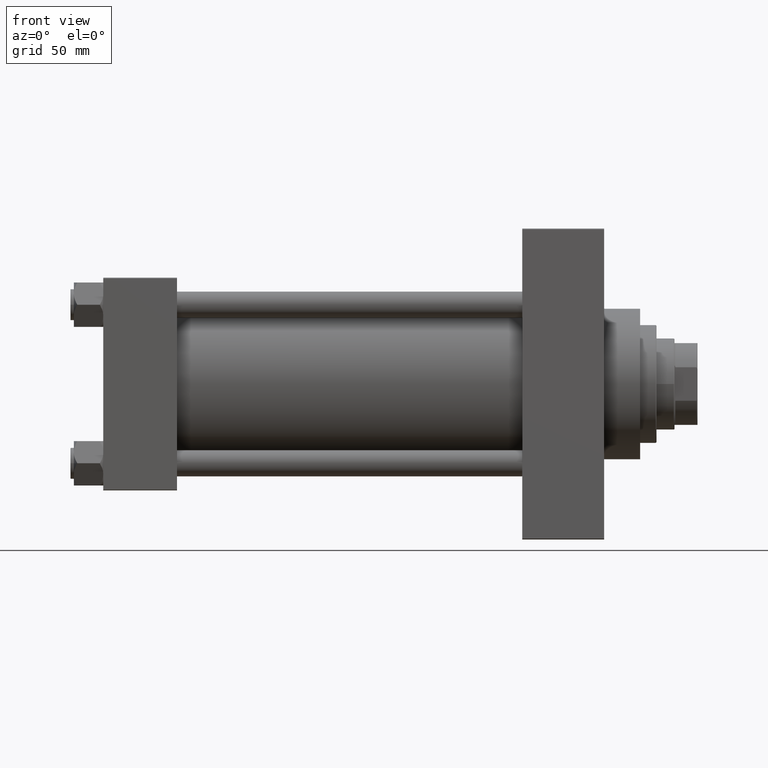
[diagram: clean part render]
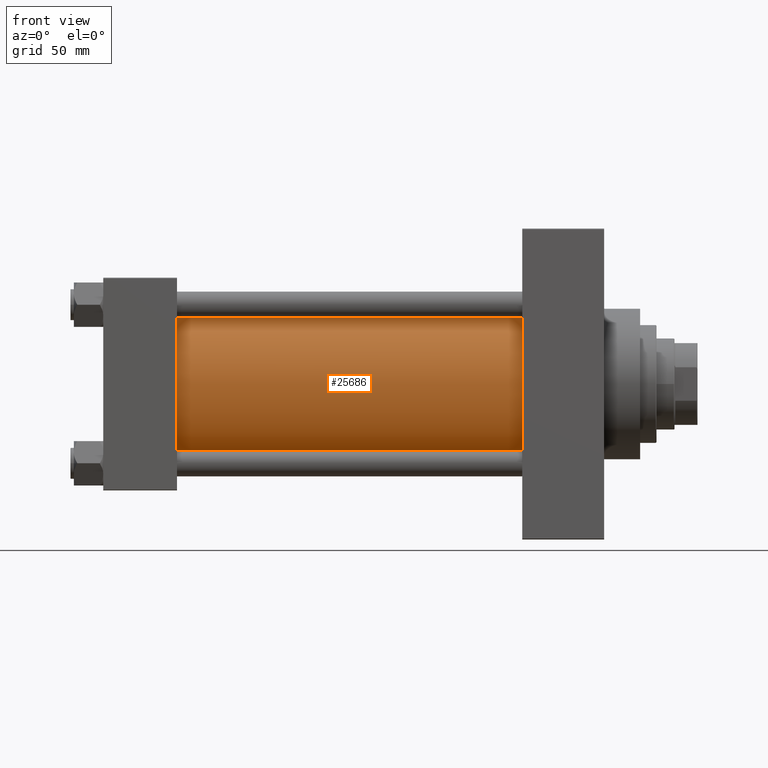
[diagram: same view with one face highlighted and labeled with its STEP entity id]
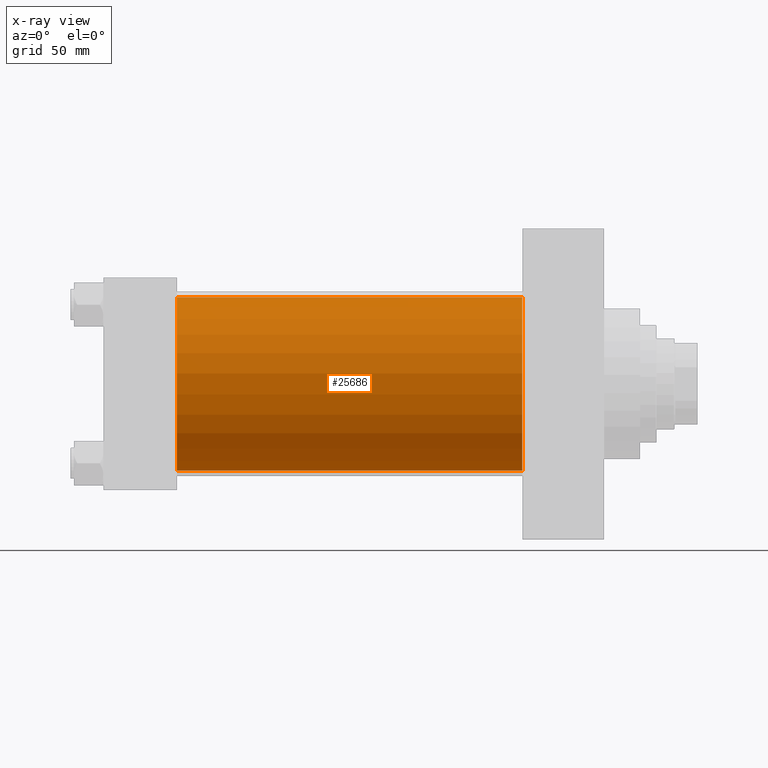
[diagram: x-ray of the same camera — body ghosted, the highlighted face saturated]
A machine part, front view. The second image highlights one B-rep face of the part: STEP entity #25686.
The next image is the same camera in x-ray: the body ghosted, the highlighted face saturated — about 2% of this face is hidden behind the body in this view.
In plain terms, the highlighted cylindrical surface (partial cylindrical patch) has radius 53 mm, axis along (-1, -0, -0).
Its self-contained STEP definition (entity closure, byte-faithful):
#491 = EDGE_LOOP ( 'NONE', ( #5631, #29740, #19304, #28752 ) ) ;
#5631 = ORIENTED_EDGE ( 'NONE', *, *, #40733, .F. ) ;
#5953 = CARTESIAN_POINT ( 'NONE',  ( 256.0000000000000000, -2.602085213965210642E-15, 0.000000000000000000 ) ) ;
#6198 = CIRCLE ( 'NONE', #23167, 53.00000000000000711 ) ;
#6877 = DIRECTION ( 'NONE',  ( -1.000000000000000000, -0.000000000000000000, -0.000000000000000000 ) ) ;
#6922 = CARTESIAN_POINT ( 'NONE',  ( 256.0000000000000000, -2.602085213965210642E-15, 0.000000000000000000 ) ) ;
#7630 = DIRECTION ( 'NONE',  ( 1.000000000000000000, 0.000000000000000000, 0.000000000000000000 ) ) ;
#7839 = CARTESIAN_POINT ( 'NONE',  ( 256.0000000000000000, -2.602085213965210642E-15, 53.00000000000000711 ) ) ;
#8450 = LINE ( 'NONE', #13015, #16151 ) ;
#13015 = CARTESIAN_POINT ( 'NONE',  ( 256.0000000000000000, 3.888542821515762466E-15, -53.00000000000000711 ) ) ;
#16151 = VECTOR ( 'NONE', #23901, 1000.000000000000000 ) ;
#16995 = VECTOR ( 'NONE', #6877, 1000.000000000000000 ) ;
#17083 = CYLINDRICAL_SURFACE ( 'NONE', #23814, 53.00000000000000711 ) ;
#18466 = DIRECTION ( 'NONE',  ( 1.000000000000000000, -0.000000000000000000, 0.000000000000000000 ) ) ;
#19304 = ORIENTED_EDGE ( 'NONE', *, *, #42525, .T. ) ;
#19413 = AXIS2_PLACEMENT_3D ( 'NONE', #6922, #7630, #22373 ) ;
#22373 = DIRECTION ( 'NONE',  ( 0.000000000000000000, 0.000000000000000000, -1.000000000000000000 ) ) ;
#23167 = AXIS2_PLACEMENT_3D ( 'NONE', #29827, #18466, #36596 ) ;
#23608 = DIRECTION ( 'NONE',  ( 0.000000000000000000, 0.000000000000000000, 1.000000000000000000 ) ) ;
#23814 = AXIS2_PLACEMENT_3D ( 'NONE', #5953, #42664, #23608 ) ;
#23901 = DIRECTION ( 'NONE',  ( -1.000000000000000000, -0.000000000000000000, -0.000000000000000000 ) ) ;
#24333 = CARTESIAN_POINT ( 'NONE',  ( 256.0000000000000000, 3.888542821515762466E-15, -53.00000000000000711 ) ) ;
#25686 = ADVANCED_FACE ( 'NONE', ( #35181 ), #17083, .T. ) ;
#28426 = VERTEX_POINT ( 'NONE', #39000 ) ;
#28752 = ORIENTED_EDGE ( 'NONE', *, *, #42581, .T. ) ;
#29480 = CARTESIAN_POINT ( 'NONE',  ( 44.99999999999998579, 3.888542821515762466E-15, -53.00000000000000711 ) ) ;
#29593 = LINE ( 'NONE', #7839, #16995 ) ;
#29740 = ORIENTED_EDGE ( 'NONE', *, *, #35791, .F. ) ;
#29827 = CARTESIAN_POINT ( 'NONE',  ( 44.99999999999998579, -2.602085213965210642E-15, 0.000000000000000000 ) ) ;
#31909 = VERTEX_POINT ( 'NONE', #40944 ) ;
#32426 = VERTEX_POINT ( 'NONE', #24333 ) ;
#35181 = FACE_OUTER_BOUND ( 'NONE', #491, .T. ) ;
#35791 = EDGE_CURVE ( 'NONE', #28426, #32426, #40241, .T. ) ;
#36596 = DIRECTION ( 'NONE',  ( 0.000000000000000000, 0.000000000000000000, 1.000000000000000000 ) ) ;
#39000 = CARTESIAN_POINT ( 'NONE',  ( 256.0000000000000000, -2.602085213965210642E-15, 53.00000000000000711 ) ) ;
#40241 = CIRCLE ( 'NONE', #19413, 53.00000000000000711 ) ;
#40733 = EDGE_CURVE ( 'NONE', #32426, #42956, #8450, .T. ) ;
#40944 = CARTESIAN_POINT ( 'NONE',  ( 44.99999999999998579, -2.602085213965210642E-15, 53.00000000000000711 ) ) ;
#42525 = EDGE_CURVE ( 'NONE', #28426, #31909, #29593, .T. ) ;
#42581 = EDGE_CURVE ( 'NONE', #31909, #42956, #6198, .T. ) ;
#42664 = DIRECTION ( 'NONE',  ( -1.000000000000000000, -0.000000000000000000, -0.000000000000000000 ) ) ;
#42956 = VERTEX_POINT ( 'NONE', #29480 ) ;